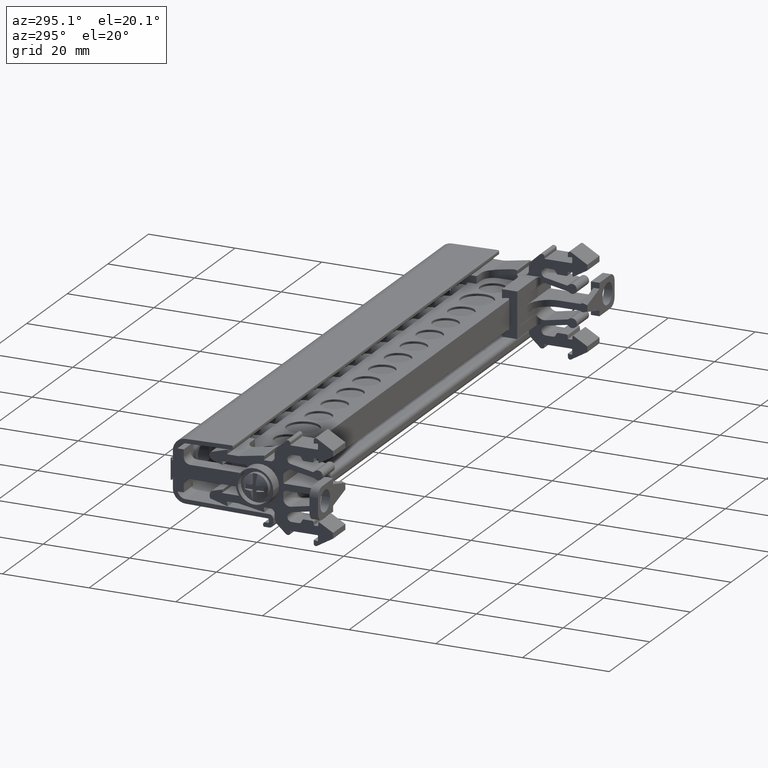
[diagram: clean part render]
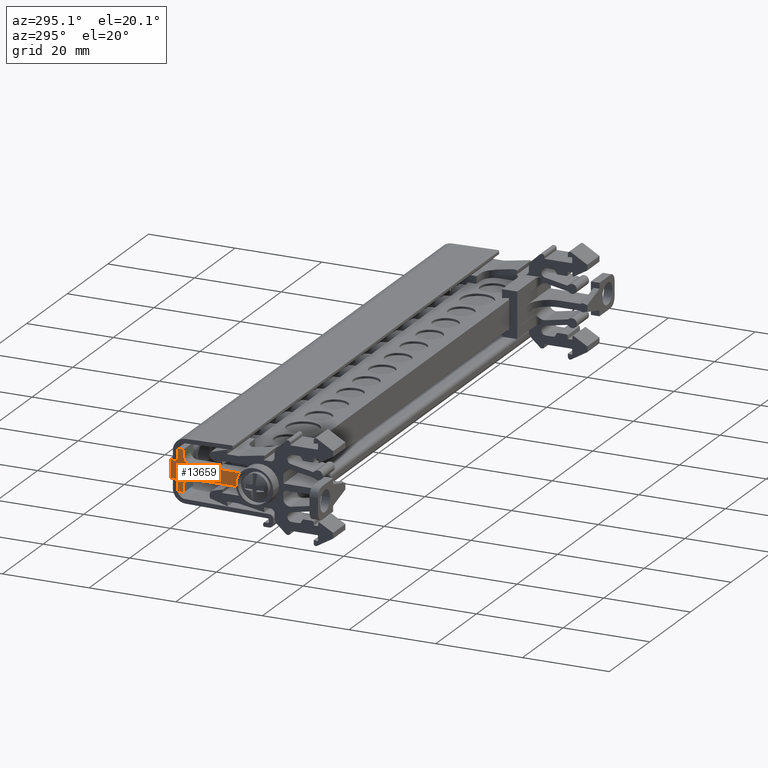
[diagram: same view with one face highlighted and labeled with its STEP entity id]
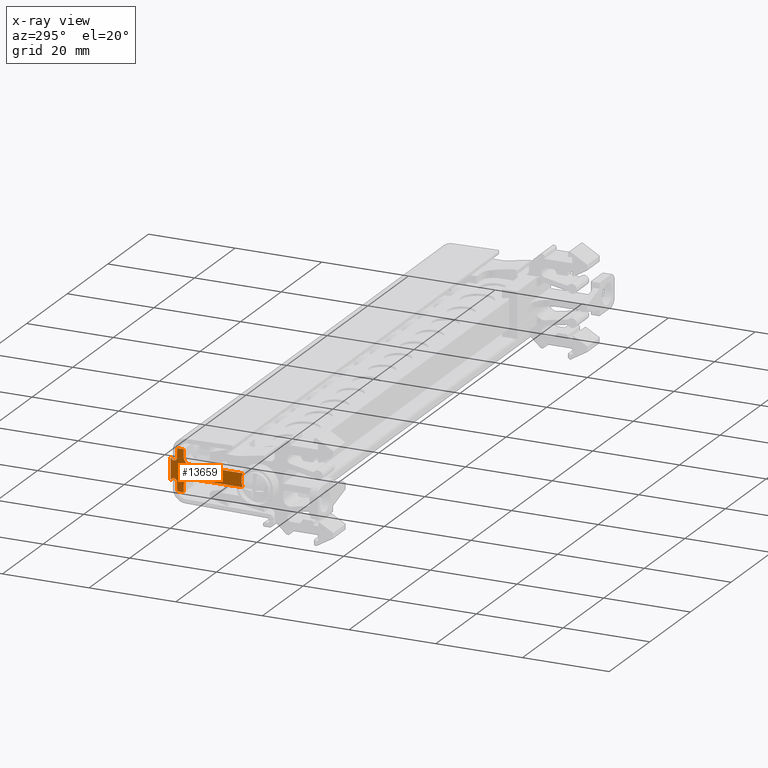
[diagram: x-ray of the same camera — body ghosted, the highlighted face saturated]
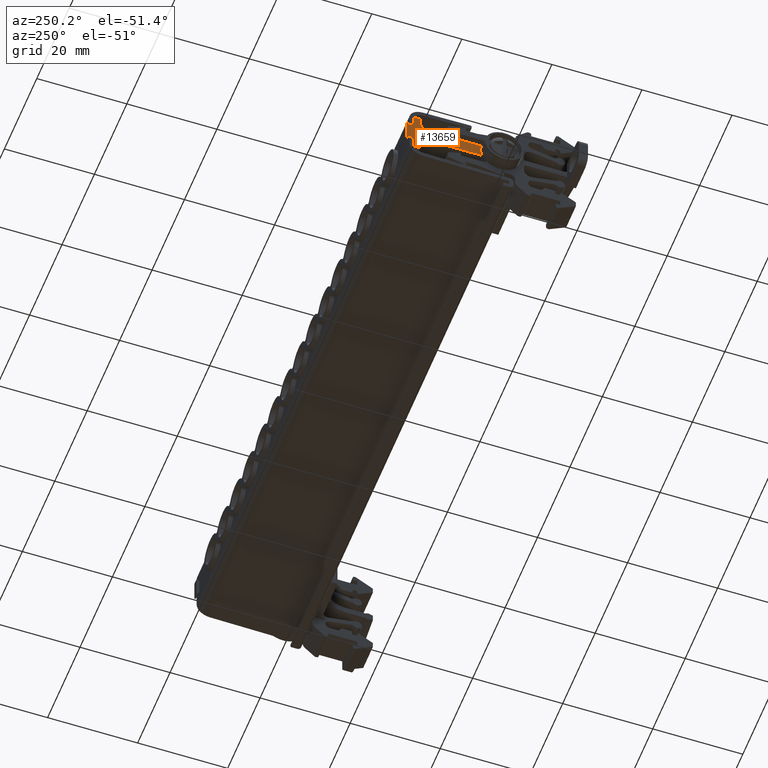
[diagram: same view with one face highlighted and labeled with its STEP entity id]
A machine part, auxiliary view. The second image highlights one B-rep face of the part: STEP entity #13659.
The next image is the same camera in x-ray: the body ghosted, the highlighted face saturated — about 0% of this face is hidden behind the body in this view.
A second angle (auxiliary view) of the same face is appended — the face is thin or edge-on in the first view.
In plain terms, the highlighted planar face has unit normal (-1, -0, -0).
Its self-contained STEP definition (entity closure, byte-faithful):
#1841 = VERTEX_POINT ( 'NONE', #30300 ) ;
#1849 = VERTEX_POINT ( 'NONE', #30312 ) ;
#1850 = VERTEX_POINT ( 'NONE', #30334 ) ;
#1861 = VERTEX_POINT ( 'NONE', #30337 ) ;
#1863 = VERTEX_POINT ( 'NONE', #30307 ) ;
#1865 = VERTEX_POINT ( 'NONE', #30344 ) ;
#1870 = VERTEX_POINT ( 'NONE', #30284 ) ;
#1873 = VERTEX_POINT ( 'NONE', #30352 ) ;
#1875 = VERTEX_POINT ( 'NONE', #30383 ) ;
#1883 = VERTEX_POINT ( 'NONE', #30286 ) ;
#2020 = VERTEX_POINT ( 'NONE', #30573 ) ;
#2033 = VERTEX_POINT ( 'NONE', #30515 ) ;
#2067 = VERTEX_POINT ( 'NONE', #30580 ) ;
#2068 = VERTEX_POINT ( 'NONE', #30596 ) ;
#2069 = VERTEX_POINT ( 'NONE', #30605 ) ;
#2073 = VERTEX_POINT ( 'NONE', #30592 ) ;
#2079 = VERTEX_POINT ( 'NONE', #30601 ) ;
#2466 = DIRECTION ( 'NONE',  ( -1.000000000000000000, -1.100569416687434300E-014, -2.539775576971001700E-015 ) ) ;
#2476 = CARTESIAN_POINT ( 'NONE',  ( -82.60539649368651300, -21.95300810028581000, 93.54104529087304300 ) ) ;
#2492 = DIRECTION ( 'NONE',  ( 0.0000000000000000000, -1.000000000000000000, 0.0000000000000000000 ) ) ;
#2638 = LINE ( 'NONE', #2646, #33960 ) ;
#2646 = CARTESIAN_POINT ( 'NONE',  ( -82.60539649368624300, -44.66941137883446800, 93.24410025424134600 ) ) ;
#2664 = DIRECTION ( 'NONE',  ( -1.108762721519138900E-014, 0.9993908184248936300, 0.03489974280738270700 ) ) ;
#3488 = VERTEX_POINT ( 'NONE', #31210 ) ;
#3498 = VERTEX_POINT ( 'NONE', #31245 ) ;
#3517 = VERTEX_POINT ( 'NONE', #31228 ) ;
#5986 = EDGE_CURVE ( 'NONE', #33094, #2073, #33958, .T. ) ;
#5997 = EDGE_CURVE ( 'NONE', #2033, #33055, #33995, .T. ) ;
#6011 = EDGE_CURVE ( 'NONE', #2033, #2020, #34005, .T. ) ;
#6084 = EDGE_CURVE ( 'NONE', #33144, #2068, #35367, .T. ) ;
#6148 = VECTOR ( 'NONE', #10030, 1000.000000000000100 ) ;
#6178 = VECTOR ( 'NONE', #10042, 1000.000000000000000 ) ;
#6186 = EDGE_CURVE ( 'NONE', #2068, #1865, #2638, .T. ) ;
#7279 = EDGE_CURVE ( 'NONE', #32599, #3517, #11505, .T. ) ;
#7371 = EDGE_CURVE ( 'NONE', #2069, #2073, #21240, .T. ) ;
#7407 = EDGE_CURVE ( 'NONE', #3498, #2067, #21481, .T. ) ;
#7408 = EDGE_CURVE ( 'NONE', #2079, #3488, #21570, .T. ) ;
#7442 = EDGE_CURVE ( 'NONE', #2020, #2067, #11635, .T. ) ;
#7444 = EDGE_CURVE ( 'NONE', #2079, #2069, #11624, .T. ) ;
#7466 = EDGE_CURVE ( 'NONE', #32936, #33057, #20300, .T. ) ;
#7469 = EDGE_CURVE ( 'NONE', #33065, #33055, #11698, .T. ) ;
#7487 = EDGE_CURVE ( 'NONE', #33066, #33144, #20353, .T. ) ;
#7490 = EDGE_CURVE ( 'NONE', #33062, #33057, #11707, .T. ) ;
#7495 = EDGE_CURVE ( 'NONE', #32928, #33062, #20377, .T. ) ;
#7590 = EDGE_CURVE ( 'NONE', #33094, #32909, #11876, .T. ) ;
#7688 = EDGE_CURVE ( 'NONE', #33066, #33086, #10878, .T. ) ;
#8444 = EDGE_CURVE ( 'NONE', #33086, #33069, #10018, .T. ) ;
#8449 = EDGE_CURVE ( 'NONE', #33065, #33069, #10028, .T. ) ;
#10010 = CARTESIAN_POINT ( 'NONE',  ( -82.60539649368649900, -22.50308649229616300, 93.98337243292459700 ) ) ;
#10018 = LINE ( 'NONE', #10010, #6148 ) ;
#10028 = LINE ( 'NONE', #10034, #6178 ) ;
#10030 = DIRECTION ( 'NONE',  ( 7.699237775255338900E-015, -0.5000000000000056600, -0.8660254037844352700 ) ) ;
#10034 = CARTESIAN_POINT ( 'NONE',  ( -82.60539649368659800, -22.79758991562919900, 83.31263998092509800 ) ) ;
#10042 = DIRECTION ( 'NONE',  ( -2.537798099622180500E-015, 1.654659315547040200E-014, 1.000000000000000000 ) ) ;
#10878 = CIRCLE ( 'NONE', #10890, 0.4998106060562987300 ) ;
#10890 = AXIS2_PLACEMENT_3D ( 'NONE', #29153, #29138, #29143 ) ;
#11505 = CIRCLE ( 'NONE', #11522, 4.325000058977887600 ) ;
#11522 = AXIS2_PLACEMENT_3D ( 'NONE', #20842, #20847, #20895 ) ;
#11558 = VECTOR ( 'NONE', #21251, 1000.000000000000000 ) ;
#11613 = VECTOR ( 'NONE', #21489, 1000.000000000000000 ) ;
#11624 = CIRCLE ( 'NONE', #11626, 1.511999999999999600 ) ;
#11626 = AXIS2_PLACEMENT_3D ( 'NONE', #21843, #21896, #21898 ) ;
#11635 = CIRCLE ( 'NONE', #11640, 1.511999999999999600 ) ;
#11640 = AXIS2_PLACEMENT_3D ( 'NONE', #21813, #21871, #21856 ) ;
#11648 = VECTOR ( 'NONE', #21494, 1000.000000000000000 ) ;
#11663 = AXIS2_PLACEMENT_3D ( 'NONE', #20409, #20392, #20402 ) ;
#11672 = VECTOR ( 'NONE', #20369, 1000.000000000000000 ) ;
#11685 = VECTOR ( 'NONE', #20379, 1000.000000000000100 ) ;
#11693 = VECTOR ( 'NONE', #20303, 1000.000000000000000 ) ;
#11698 = CIRCLE ( 'NONE', #11699, 1.999242424225198500 ) ;
#11699 = AXIS2_PLACEMENT_3D ( 'NONE', #20314, #20315, #20247 ) ;
#11707 = CIRCLE ( 'NONE', #11663, 0.4998106060562987300 ) ;
#11856 = AXIS2_PLACEMENT_3D ( 'NONE', #20687, #20694, #20701 ) ;
#11876 = CIRCLE ( 'NONE', #11856, 1.999242424225198500 ) ;
#12852 = EDGE_CURVE ( 'NONE', #32595, #32599, #17128, .T. ) ;
#13659 = ADVANCED_FACE ( 'NONE', ( #18273 ), #18234, .T. ) ;
#14129 = EDGE_CURVE ( 'NONE', #1850, #32946, #20048, .T. ) ;
#14145 = EDGE_CURVE ( 'NONE', #1849, #1863, #20088, .T. ) ;
#14158 = EDGE_CURVE ( 'NONE', #1849, #1841, #20116, .T. ) ;
#14175 = EDGE_CURVE ( 'NONE', #1863, #1861, #20180, .T. ) ;
#14204 = EDGE_CURVE ( 'NONE', #1865, #1873, #17885, .T. ) ;
#14205 = EDGE_CURVE ( 'NONE', #1883, #1850, #17889, .T. ) ;
#14221 = EDGE_CURVE ( 'NONE', #1861, #1873, #31511, .T. ) ;
#14227 = EDGE_CURVE ( 'NONE', #1875, #1870, #19335, .T. ) ;
#14232 = EDGE_CURVE ( 'NONE', #1883, #1875, #31515, .T. ) ;
#14238 = EDGE_CURVE ( 'NONE', #1870, #1841, #19419, .T. ) ;
#14315 = EDGE_CURVE ( 'NONE', #32936, #32946, #23044, .T. ) ;
#14348 = EDGE_CURVE ( 'NONE', #32928, #32909, #23206, .T. ) ;
#14653 = EDGE_CURVE ( 'NONE', #3498, #32595, #24034, .T. ) ;
#14663 = EDGE_CURVE ( 'NONE', #3517, #3488, #24060, .T. ) ;
#16321 = DIRECTION ( 'NONE',  ( 1.000000000000000000, 1.111883425166246100E-014, 2.470852055924995400E-015 ) ) ;
#16336 = CARTESIAN_POINT ( 'NONE',  ( -82.60539649368630000, -41.96391012922065000, 96.00723811290700400 ) ) ;
#16350 = DIRECTION ( 'NONE',  ( -9.626211064903994500E-015, 1.000000000000000000, 0.0000000000000000000 ) ) ;
#17128 = CIRCLE ( 'NONE', #17133, 4.325000058977887600 ) ;
#17133 = AXIS2_PLACEMENT_3D ( 'NONE', #16336, #16321, #16350 ) ;
#17608 = AXIS2_PLACEMENT_3D ( 'NONE', #18282, #18269, #18294 ) ;
#17786 = VECTOR ( 'NONE', #20077, 1000.000000000000100 ) ;
#17798 = VECTOR ( 'NONE', #20222, 1000.000000000000100 ) ;
#17808 = VECTOR ( 'NONE', #20158, 1000.000000000000000 ) ;
#17828 = VECTOR ( 'NONE', #20102, 1000.000000000000000 ) ;
#17862 = AXIS2_PLACEMENT_3D ( 'NONE', #19241, #19266, #19253 ) ;
#17867 = VECTOR ( 'NONE', #19331, 1000.000000000000100 ) ;
#17875 = VECTOR ( 'NONE', #19394, 1000.000000000000000 ) ;
#17885 = CIRCLE ( 'NONE', #17862, 0.1984126984199453800 ) ;
#17887 = AXIS2_PLACEMENT_3D ( 'NONE', #19269, #19259, #19242 ) ;
#17889 = CIRCLE ( 'NONE', #17887, 0.1984133513008232200 ) ;
#18010 = VECTOR ( 'NONE', #23054, 1000.000000000000000 ) ;
#18032 = VECTOR ( 'NONE', #23219, 1000.000000000000000 ) ;
#18234 = PLANE ( 'NONE',  #17608 ) ;
#18269 = DIRECTION ( 'NONE',  ( -1.000000000000000000, -1.111883425166246100E-014, -2.470852055924995400E-015 ) ) ;
#18273 = FACE_OUTER_BOUND ( 'NONE', #27923, .T. ) ;
#18282 = CARTESIAN_POINT ( 'NONE',  ( -82.60539649368620000, -43.52083688173429700, 68.30975947004790800 ) ) ;
#18294 = DIRECTION ( 'NONE',  ( -1.111883425166246100E-014, 1.000000000000000000, 0.0000000000000000000 ) ) ;
#19241 = CARTESIAN_POINT ( 'NONE',  ( -82.60539649368651300, -21.74373283627880600, 93.84615460105685300 ) ) ;
#19242 = DIRECTION ( 'NONE',  ( 0.0000000000000000000, -1.000000000000000000, 0.0000000000000000000 ) ) ;
#19253 = DIRECTION ( 'NONE',  ( 0.0000000000000000000, -1.000000000000000000, 0.0000000000000000000 ) ) ;
#19259 = DIRECTION ( 'NONE',  ( -1.000000000000000000, -1.100569416687434300E-014, -2.539775576971001700E-015 ) ) ;
#19266 = DIRECTION ( 'NONE',  ( -1.000000000000000000, -1.100569416687434300E-014, -2.539775576971001700E-015 ) ) ;
#19269 = CARTESIAN_POINT ( 'NONE',  ( -82.60539649368651300, -21.74373230720193100, 98.22533280310241800 ) ) ;
#19282 = CARTESIAN_POINT ( 'NONE',  ( -82.60539649368649900, -21.54532008967048300, 93.84615454858072800 ) ) ;
#19289 = CARTESIAN_POINT ( 'NONE',  ( -82.60539649368651300, -21.56765984944712100, 93.94082582075061800 ) ) ;
#19312 = CARTESIAN_POINT ( 'NONE',  ( -82.60539649368651300, -21.54532008967055000, 93.87064362860221000 ) ) ;
#19314 = CARTESIAN_POINT ( 'NONE',  ( -82.60539649368651300, -21.58086299906584300, 93.96213998591912300 ) ) ;
#19321 = CARTESIAN_POINT ( 'NONE',  ( -82.60539649368649900, -21.59758993072238200, 93.98035538365482500 ) ) ;
#19327 = CARTESIAN_POINT ( 'NONE',  ( -82.60539649368651300, -21.54995464411248900, 93.89529069019960200 ) ) ;
#19331 = DIRECTION ( 'NONE',  ( -2.539800057262474300E-015, 2.224330186221813400E-006, 0.9999999999975262000 ) ) ;
#19335 = LINE ( 'NONE', #19370, #17867 ) ;
#19336 = CARTESIAN_POINT ( 'NONE',  ( -82.60539649368651300, -21.56772714472450800, 98.13050014743151900 ) ) ;
#19347 = CARTESIAN_POINT ( 'NONE',  ( -82.60539649368651300, -21.54531832859052900, 98.20083905835684800 ) ) ;
#19349 = CARTESIAN_POINT ( 'NONE',  ( -82.60539649368651300, -21.59758816964187700, 98.09113239687630400 ) ) ;
#19350 = CARTESIAN_POINT ( 'NONE',  ( -82.60539649368651300, -21.58082855583751700, 98.10938338501974000 ) ) ;
#19362 = CARTESIAN_POINT ( 'NONE',  ( -82.60539649368651300, -21.54991731438818200, 98.17627280697759300 ) ) ;
#19366 = CARTESIAN_POINT ( 'NONE',  ( -82.60539649368651300, -21.54531832859049000, 98.22533323195017400 ) ) ;
#19370 = CARTESIAN_POINT ( 'NONE',  ( -82.60539649368651300, -21.54532147853385700, 96.80920203567721700 ) ) ;
#19394 = DIRECTION ( 'NONE',  ( -1.100569416687434500E-014, 1.000000000000000000, -2.719344205910320500E-029 ) ) ;
#19419 = LINE ( 'NONE', #19420, #17875 ) ;
#19420 = CARTESIAN_POINT ( 'NONE',  ( -82.60539649368625700, -44.79391016120732900, 98.47334906283136000 ) ) ;
#20048 = LINE ( 'NONE', #20055, #17786 ) ;
#20055 = CARTESIAN_POINT ( 'NONE',  ( -82.60539649368625700, -44.72337160869885500, 98.82925053164302700 ) ) ;
#20077 = DIRECTION ( 'NONE',  ( 1.091035476927592500E-014, -0.9993908492711424100, 0.03489885948143136400 ) ) ;
#20088 = LINE ( 'NONE', #20131, #17828 ) ;
#20102 = DIRECTION ( 'NONE',  ( 1.100569416687434500E-014, -1.000000000000000000, -1.112242799213912800E-028 ) ) ;
#20116 = LINE ( 'NONE', #20135, #17808 ) ;
#20131 = CARTESIAN_POINT ( 'NONE',  ( -82.60539649368624300, -44.79391016120732900, 93.59813871765074100 ) ) ;
#20135 = CARTESIAN_POINT ( 'NONE',  ( -82.60539649368645600, -21.28759142886957500, 68.30975947004790800 ) ) ;
#20158 = DIRECTION ( 'NONE',  ( -2.470852055924995400E-015, -2.747299447020945500E-029, 1.000000000000000000 ) ) ;
#20180 = LINE ( 'NONE', #20188, #17798 ) ;
#20188 = CARTESIAN_POINT ( 'NONE',  ( -82.60539649368651300, -21.54532668069053300, 96.80930546069400600 ) ) ;
#20222 = DIRECTION ( 'NONE',  ( -2.539751096689137500E-015, -2.224328171395203800E-006, 0.9999999999975262000 ) ) ;
#20247 = DIRECTION ( 'NONE',  ( 1.388304653768315200E-014, -1.000000000000000000, 0.0000000000000000000 ) ) ;
#20267 = CARTESIAN_POINT ( 'NONE',  ( -82.60539649368651300, -21.79796870374110200, 98.00648053713342700 ) ) ;
#20300 = LINE ( 'NONE', #20267, #11693 ) ;
#20303 = DIRECTION ( 'NONE',  ( 1.102582946507902400E-014, -0.9993908270190951000, 0.03489949670251762300 ) ) ;
#20314 = CARTESIAN_POINT ( 'NONE',  ( -82.60539649368647000, -24.79683233985525700, 91.79530774263902500 ) ) ;
#20315 = DIRECTION ( 'NONE',  ( -1.000000000000000000, -1.111883425166246100E-014, -2.470852055924995400E-015 ) ) ;
#20353 = LINE ( 'NONE', #20356, #11672 ) ;
#20356 = CARTESIAN_POINT ( 'NONE',  ( -82.60539649368651300, -21.79796870374118400, 94.00799568868298200 ) ) ;
#20369 = DIRECTION ( 'NONE',  ( -1.119829245143528400E-014, 0.9993908270190963200, 0.03489949670248448900 ) ) ;
#20370 = CARTESIAN_POINT ( 'NONE',  ( -82.60539649368651300, -22.50308649229604900, 98.03110379289236700 ) ) ;
#20377 = LINE ( 'NONE', #20370, #11685 ) ;
#20379 = DIRECTION ( 'NONE',  ( -3.419596476406853800E-015, 0.4999999999999743000, -0.8660254037844533600 ) ) ;
#20392 = DIRECTION ( 'NONE',  ( 1.000000000000000000, 1.111883425166246100E-014, 2.470852055924995400E-015 ) ) ;
#20402 = DIRECTION ( 'NONE',  ( 0.0000000000000000000, -1.000000000000000000, 0.0000000000000000000 ) ) ;
#20409 = CARTESIAN_POINT ( 'NONE',  ( -82.60539649368651300, -22.20876258184501500, 98.52094103822112500 ) ) ;
#20687 = CARTESIAN_POINT ( 'NONE',  ( -82.60539649368649900, -24.79683233985500500, 100.2185217576087300 ) ) ;
#20694 = DIRECTION ( 'NONE',  ( -1.000000000000000000, -1.111883425166246100E-014, -2.470852055924995400E-015 ) ) ;
#20701 = DIRECTION ( 'NONE',  ( 1.388304653768315200E-014, -1.000000000000000000, 0.0000000000000000000 ) ) ;
#20842 = CARTESIAN_POINT ( 'NONE',  ( -82.60539649368630000, -41.96391012922065000, 96.00723811290700400 ) ) ;
#20847 = DIRECTION ( 'NONE',  ( 1.000000000000000000, 1.111883425166246100E-014, 2.470852055924995400E-015 ) ) ;
#20895 = DIRECTION ( 'NONE',  ( -9.626211064903994500E-015, 1.000000000000000000, 0.0000000000000000000 ) ) ;
#21208 = CARTESIAN_POINT ( 'NONE',  ( -82.60539649368659800, -24.30958991562920000, 92.14264221563870200 ) ) ;
#21240 = LINE ( 'NONE', #21208, #11558 ) ;
#21251 = DIRECTION ( 'NONE',  ( -2.537798099621990400E-015, -2.793557545822625200E-029, 1.000000000000000000 ) ) ;
#21481 = LINE ( 'NONE', #21513, #11648 ) ;
#21487 = CARTESIAN_POINT ( 'NONE',  ( -82.60539649368651300, -30.77652496544995100, 97.58584221563549500 ) ) ;
#21489 = DIRECTION ( 'NONE',  ( 1.122594556886312100E-014, -1.000000000000000000, 1.386842793261064000E-013 ) ) ;
#21494 = DIRECTION ( 'NONE',  ( -1.122594556886380100E-014, 1.000000000000000000, 1.386842793261064000E-013 ) ) ;
#21513 = CARTESIAN_POINT ( 'NONE',  ( -82.60539649368651300, -30.77652496544995100, 94.46104221564169700 ) ) ;
#21570 = LINE ( 'NONE', #21487, #11613 ) ;
#21813 = CARTESIAN_POINT ( 'NONE',  ( -82.60539649368651300, -25.82158991562925400, 92.94904221564269200 ) ) ;
#21843 = CARTESIAN_POINT ( 'NONE',  ( -82.60539649368659800, -25.82158991562925400, 99.09784221563469900 ) ) ;
#21856 = DIRECTION ( 'NONE',  ( 9.178431089824379200E-015, -1.000000000000000000, 0.0000000000000000000 ) ) ;
#21871 = DIRECTION ( 'NONE',  ( 1.000000000000000000, 1.122594556886346100E-014, 2.537798099621990400E-015 ) ) ;
#21896 = DIRECTION ( 'NONE',  ( 1.000000000000000000, 1.122594556886346100E-014, 2.537798099621990400E-015 ) ) ;
#21898 = DIRECTION ( 'NONE',  ( 9.178431089824379200E-015, -1.000000000000000000, 0.0000000000000000000 ) ) ;
#23044 = LINE ( 'NONE', #23062, #18010 ) ;
#23054 = DIRECTION ( 'NONE',  ( -2.470852055925179200E-015, 1.654659315547037400E-014, 1.000000000000000000 ) ) ;
#23062 = CARTESIAN_POINT ( 'NONE',  ( -82.60539649368651300, -21.79796870374124400, 91.79530774263891100 ) ) ;
#23206 = LINE ( 'NONE', #23230, #18032 ) ;
#23219 = DIRECTION ( 'NONE',  ( -2.537798099622180500E-015, 1.654659315547040200E-014, 1.000000000000000000 ) ) ;
#23230 = CARTESIAN_POINT ( 'NONE',  ( -82.60539649368659800, -22.79758991562919900, 83.31263998092509800 ) ) ;
#24034 = CIRCLE ( 'NONE', #24046, 1.000000000000000900 ) ;
#24046 = AXIS2_PLACEMENT_3D ( 'NONE', #25536, #25510, #25527 ) ;
#24060 = CIRCLE ( 'NONE', #24066, 1.000000000000000900 ) ;
#24066 = AXIS2_PLACEMENT_3D ( 'NONE', #24480, #24472, #24447 ) ;
#24447 = DIRECTION ( 'NONE',  ( 1.387778780781444400E-014, -1.000000000000000000, -1.387778780781444400E-014 ) ) ;
#24472 = DIRECTION ( 'NONE',  ( 1.000000000000000000, 1.122594556886346100E-014, 2.537798099621990400E-015 ) ) ;
#24480 = CARTESIAN_POINT ( 'NONE',  ( -82.60539649368641300, -37.78158991562885700, 98.58584221563629100 ) ) ;
#25510 = DIRECTION ( 'NONE',  ( 1.000000000000000000, 1.122594556886346100E-014, 2.537798099621990400E-015 ) ) ;
#25527 = DIRECTION ( 'NONE',  ( 1.387778780781444400E-014, -1.000000000000000000, -9.714451465470110900E-014 ) ) ;
#25536 = CARTESIAN_POINT ( 'NONE',  ( -82.60539649368641300, -37.78158991562885700, 93.46104221564110000 ) ) ;
#26746 = CARTESIAN_POINT ( 'NONE',  ( -82.60539649368634200, -37.63891007024275800, 96.00723811290700400 ) ) ;
#26754 = CARTESIAN_POINT ( 'NONE',  ( -82.60539649368641300, -37.92893410400234400, 94.45012749515569800 ) ) ;
#26922 = CARTESIAN_POINT ( 'NONE',  ( -82.60539649368651300, -21.79796870374114100, 98.02869245657278400 ) ) ;
#26927 = CARTESIAN_POINT ( 'NONE',  ( -82.60539649368651300, -22.79758991562989200, 98.54119868510899500 ) ) ;
#26967 = CARTESIAN_POINT ( 'NONE',  ( -82.60539649368651300, -22.79758991562891900, 100.2185217576087000 ) ) ;
#26970 = CARTESIAN_POINT ( 'NONE',  ( -82.60539649368651300, -21.79796870374110200, 98.00648053713342700 ) ) ;
#27043 = CARTESIAN_POINT ( 'NONE',  ( -82.60539649368644200, -22.79758991563003400, 91.79530774264590300 ) ) ;
#27059 = CARTESIAN_POINT ( 'NONE',  ( -82.60539649368651300, -22.22620572044301600, 93.99304132253516300 ) ) ;
#27061 = CARTESIAN_POINT ( 'NONE',  ( -82.60539649368651300, -22.64161126377062800, 98.27103573519296700 ) ) ;
#27094 = CARTESIAN_POINT ( 'NONE',  ( -82.60539649368651300, -22.79758991562998800, 93.47327754070751400 ) ) ;
#27095 = CARTESIAN_POINT ( 'NONE',  ( -82.60539649368649900, -22.87758226170011600, 91.23544221563869900 ) ) ;
#27100 = CARTESIAN_POINT ( 'NONE',  ( -82.60539649368651300, -22.22620572044292000, 98.02143490328178600 ) ) ;
#27133 = CARTESIAN_POINT ( 'NONE',  ( -82.60539649368649900, -22.64161126377072700, 93.74344049062348500 ) ) ;
#27143 = CARTESIAN_POINT ( 'NONE',  ( -82.60539649368651300, -22.88753519135460800, 100.8114422156383900 ) ) ;
#27153 = CARTESIAN_POINT ( 'NONE',  ( -82.60539649368649900, -22.15145525524380000, 93.99565166629953700 ) ) ;
#27923 = EDGE_LOOP ( 'NONE', ( #32382, #32447, #32424, #32399, #32439, #32450, #32459, #32386, #32407, #32436, #32418, #32449, #32432, #32380, #32356, #32337, #32423, #32457, #32393, #32355, #32340, #32381, #32448, #32338, #32348, #32413, #32426, #32401, #32430, #32398, #32410, #32414, #32409, #32415, #32434 ) ) ;
#29138 = DIRECTION ( 'NONE',  ( 1.000000000000000000, 1.111883425166246100E-014, 2.470852055924995400E-015 ) ) ;
#29143 = DIRECTION ( 'NONE',  ( 0.0000000000000000000, -1.000000000000000000, 0.0000000000000000000 ) ) ;
#29153 = CARTESIAN_POINT ( 'NONE',  ( -82.60539649368651300, -22.20876258184507200, 93.49353518759534200 ) ) ;
#30284 = CARTESIAN_POINT ( 'NONE',  ( -82.60539649368651300, -21.54531777692139000, 98.47334906283136000 ) ) ;
#30286 = CARTESIAN_POINT ( 'NONE',  ( -82.60539649368651300, -21.59758816964187700, 98.09113239687630400 ) ) ;
#30300 = CARTESIAN_POINT ( 'NONE',  ( -82.60539649368651300, -21.28759142886957500, 98.47334906283136000 ) ) ;
#30307 = CARTESIAN_POINT ( 'NONE',  ( -82.60539649368649900, -21.54531953800188400, 93.59813871765074100 ) ) ;
#30312 = CARTESIAN_POINT ( 'NONE',  ( -82.60539649368651300, -21.28759142886957500, 93.59813871765074100 ) ) ;
#30334 = CARTESIAN_POINT ( 'NONE',  ( -82.60539649368651300, -21.75065670686822000, 98.02704031543915200 ) ) ;
#30337 = CARTESIAN_POINT ( 'NONE',  ( -82.60539649368649900, -21.54532008967048300, 93.84615454858072800 ) ) ;
#30344 = CARTESIAN_POINT ( 'NONE',  ( -82.60539649368649900, -21.75065738842337400, 94.04444643011642300 ) ) ;
#30352 = CARTESIAN_POINT ( 'NONE',  ( -82.60539649368649900, -21.59758993072238200, 93.98035538365482500 ) ) ;
#30383 = CARTESIAN_POINT ( 'NONE',  ( -82.60539649368651300, -21.54531832859049000, 98.22533323195017400 ) ) ;
#30515 = CARTESIAN_POINT ( 'NONE',  ( -82.60539649368659800, -24.30958991562920000, 91.23544221563869900 ) ) ;
#30573 = CARTESIAN_POINT ( 'NONE',  ( -82.60539649368659800, -24.30958991562920000, 92.94904221564269200 ) ) ;
#30580 = CARTESIAN_POINT ( 'NONE',  ( -82.60539649368651300, -25.82158992262785100, 94.46104221564269200 ) ) ;
#30592 = CARTESIAN_POINT ( 'NONE',  ( -82.60539649368651300, -24.30958991562920000, 100.8114422156383900 ) ) ;
#30596 = CARTESIAN_POINT ( 'NONE',  ( -82.60539649368649900, -21.97031950656706900, 94.03677560576382200 ) ) ;
#30601 = CARTESIAN_POINT ( 'NONE',  ( -82.60539649368659800, -25.82158991562920000, 97.58584221563448600 ) ) ;
#30605 = CARTESIAN_POINT ( 'NONE',  ( -82.60539649368659800, -24.30958991562920000, 99.09784221563469900 ) ) ;
#31210 = CARTESIAN_POINT ( 'NONE',  ( -82.60539649368641300, -37.78158991562899900, 97.58584221563629100 ) ) ;
#31228 = CARTESIAN_POINT ( 'NONE',  ( -82.60539649368641300, -37.94242238155204900, 97.59886049447560200 ) ) ;
#31245 = CARTESIAN_POINT ( 'NONE',  ( -82.60539649368641300, -37.78158991562899900, 94.46104221564110000 ) ) ;
#31511 = B_SPLINE_CURVE_WITH_KNOTS ( 'NONE', 3,
 ( #19282, #19312, #19327, #19289, #19314, #19321 ),
 .UNSPECIFIED., .F., .F.,
 ( 4, 2, 4 ),
 ( 0.0000000000000000000, 0.5000000000000000000, 1.000000000000000000 ),
 .UNSPECIFIED. ) ;
#31515 = B_SPLINE_CURVE_WITH_KNOTS ( 'NONE', 3,
 ( #19349, #19350, #19336, #19362, #19347, #19366 ),
 .UNSPECIFIED., .F., .F.,
 ( 4, 2, 4 ),
 ( 0.0000000000000000000, 0.5000000000000000000, 1.000000000000000000 ),
 .UNSPECIFIED. ) ;
#32337 = ORIENTED_EDGE ( 'NONE', *, *, #7371, .T. ) ;
#32338 = ORIENTED_EDGE ( 'NONE', *, *, #14129, .F. ) ;
#32340 = ORIENTED_EDGE ( 'NONE', *, *, #7490, .T. ) ;
#32348 = ORIENTED_EDGE ( 'NONE', *, *, #14205, .F. ) ;
#32355 = ORIENTED_EDGE ( 'NONE', *, *, #7495, .T. ) ;
#32356 = ORIENTED_EDGE ( 'NONE', *, *, #7444, .T. ) ;
#32380 = ORIENTED_EDGE ( 'NONE', *, *, #7408, .F. ) ;
#32381 = ORIENTED_EDGE ( 'NONE', *, *, #7466, .F. ) ;
#32382 = ORIENTED_EDGE ( 'NONE', *, *, #7487, .F. ) ;
#32386 = ORIENTED_EDGE ( 'NONE', *, *, #7442, .T. ) ;
#32393 = ORIENTED_EDGE ( 'NONE', *, *, #14348, .F. ) ;
#32398 = ORIENTED_EDGE ( 'NONE', *, *, #14145, .T. ) ;
#32399 = ORIENTED_EDGE ( 'NONE', *, *, #8449, .F. ) ;
#32401 = ORIENTED_EDGE ( 'NONE', *, *, #14238, .T. ) ;
#32407 = ORIENTED_EDGE ( 'NONE', *, *, #7407, .F. ) ;
#32409 = ORIENTED_EDGE ( 'NONE', *, *, #14204, .F. ) ;
#32410 = ORIENTED_EDGE ( 'NONE', *, *, #14175, .T. ) ;
#32413 = ORIENTED_EDGE ( 'NONE', *, *, #14232, .T. ) ;
#32414 = ORIENTED_EDGE ( 'NONE', *, *, #14221, .T. ) ;
#32415 = ORIENTED_EDGE ( 'NONE', *, *, #6186, .F. ) ;
#32418 = ORIENTED_EDGE ( 'NONE', *, *, #12852, .T. ) ;
#32423 = ORIENTED_EDGE ( 'NONE', *, *, #5986, .F. ) ;
#32424 = ORIENTED_EDGE ( 'NONE', *, *, #8444, .T. ) ;
#32426 = ORIENTED_EDGE ( 'NONE', *, *, #14227, .T. ) ;
#32430 = ORIENTED_EDGE ( 'NONE', *, *, #14158, .F. ) ;
#32432 = ORIENTED_EDGE ( 'NONE', *, *, #14663, .T. ) ;
#32434 = ORIENTED_EDGE ( 'NONE', *, *, #6084, .F. ) ;
#32436 = ORIENTED_EDGE ( 'NONE', *, *, #14653, .T. ) ;
#32439 = ORIENTED_EDGE ( 'NONE', *, *, #7469, .T. ) ;
#32447 = ORIENTED_EDGE ( 'NONE', *, *, #7688, .T. ) ;
#32448 = ORIENTED_EDGE ( 'NONE', *, *, #14315, .T. ) ;
#32449 = ORIENTED_EDGE ( 'NONE', *, *, #7279, .T. ) ;
#32450 = ORIENTED_EDGE ( 'NONE', *, *, #5997, .F. ) ;
#32457 = ORIENTED_EDGE ( 'NONE', *, *, #7590, .T. ) ;
#32459 = ORIENTED_EDGE ( 'NONE', *, *, #6011, .T. ) ;
#32595 = VERTEX_POINT ( 'NONE', #26754 ) ;
#32599 = VERTEX_POINT ( 'NONE', #26746 ) ;
#32909 = VERTEX_POINT ( 'NONE', #26967 ) ;
#32928 = VERTEX_POINT ( 'NONE', #26927 ) ;
#32936 = VERTEX_POINT ( 'NONE', #26970 ) ;
#32946 = VERTEX_POINT ( 'NONE', #26922 ) ;
#33055 = VERTEX_POINT ( 'NONE', #27095 ) ;
#33057 = VERTEX_POINT ( 'NONE', #27100 ) ;
#33062 = VERTEX_POINT ( 'NONE', #27061 ) ;
#33065 = VERTEX_POINT ( 'NONE', #27043 ) ;
#33066 = VERTEX_POINT ( 'NONE', #27059 ) ;
#33069 = VERTEX_POINT ( 'NONE', #27094 ) ;
#33086 = VERTEX_POINT ( 'NONE', #27133 ) ;
#33094 = VERTEX_POINT ( 'NONE', #27143 ) ;
#33144 = VERTEX_POINT ( 'NONE', #27153 ) ;
#33958 = LINE ( 'NONE', #33963, #35467 ) ;
#33960 = VECTOR ( 'NONE', #2664, 999.9999999999998900 ) ;
#33961 = DIRECTION ( 'NONE',  ( -1.122594556886346100E-014, 1.000000000000000000, -5.782411586589360600E-016 ) ) ;
#33963 = CARTESIAN_POINT ( 'NONE',  ( -82.60539649368651300, -24.30958991562920000, 100.8114422156383900 ) ) ;
#33966 = CARTESIAN_POINT ( 'NONE',  ( -82.60539649368659800, -24.30958991562920000, 92.14264221563870200 ) ) ;
#33973 = DIRECTION ( 'NONE',  ( -2.537798099621990400E-015, -2.793557545822625200E-029, 1.000000000000000000 ) ) ;
#33995 = LINE ( 'NONE', #34020, #35474 ) ;
#34005 = LINE ( 'NONE', #33966, #35332 ) ;
#34019 = DIRECTION ( 'NONE',  ( 1.122594556886344200E-014, -1.000000000000000000, -5.782411586589350700E-016 ) ) ;
#34020 = CARTESIAN_POINT ( 'NONE',  ( -82.60539649368659800, -24.30958991562920000, 91.23544221563869900 ) ) ;
#35332 = VECTOR ( 'NONE', #33973, 1000.000000000000000 ) ;
#35345 = AXIS2_PLACEMENT_3D ( 'NONE', #2476, #2466, #2492 ) ;
#35367 = CIRCLE ( 'NONE', #35345, 0.4960324887437784800 ) ;
#35467 = VECTOR ( 'NONE', #34019, 1000.000000000000000 ) ;
#35474 = VECTOR ( 'NONE', #33961, 1000.000000000000000 ) ;